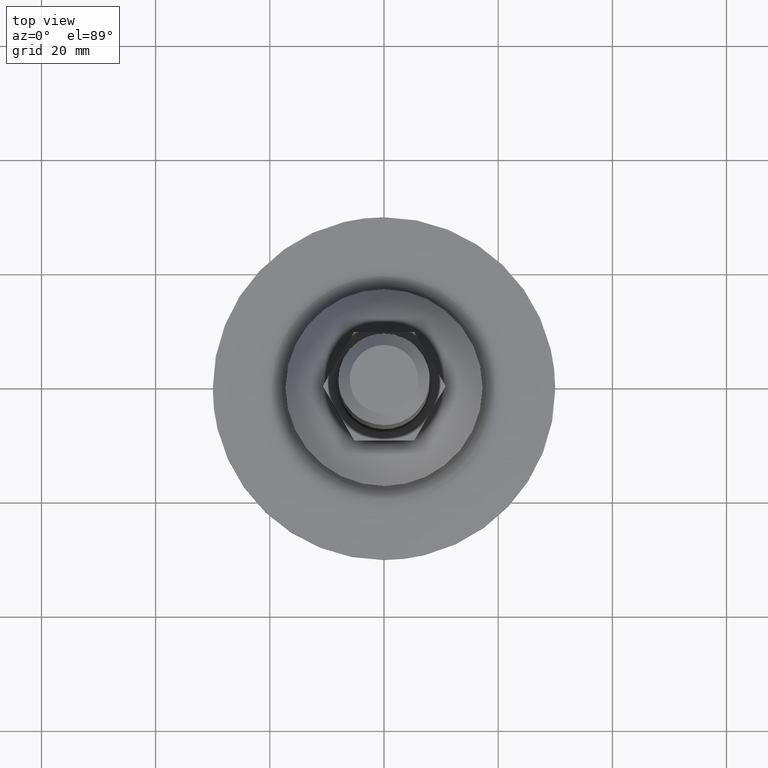
[diagram: clean part render]
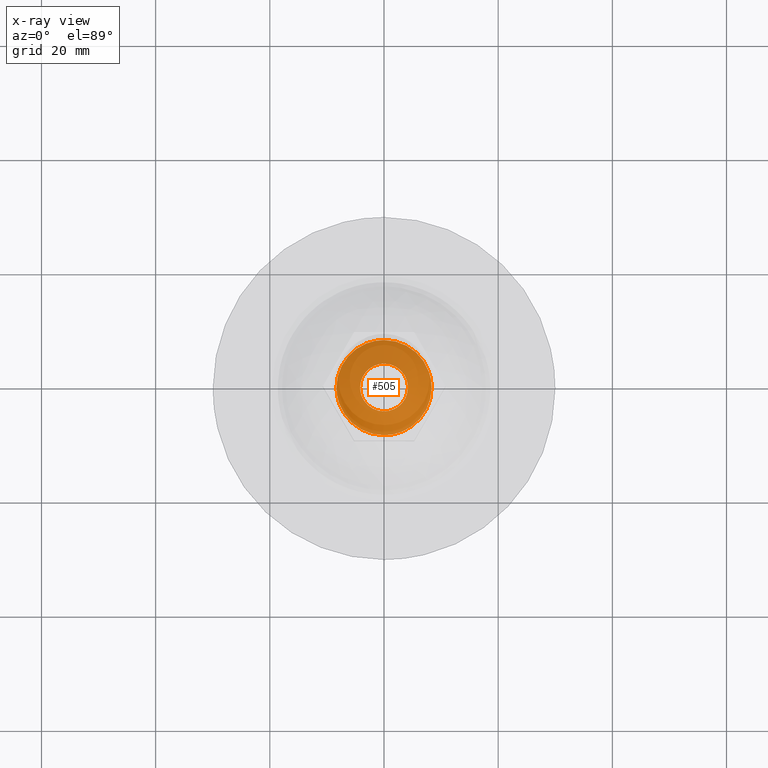
[diagram: x-ray — body ghosted, one internal face saturated and labeled with its STEP entity id]
A machine part, top view, then the same camera in x-ray: the body is ghosted and one INTERNAL B-rep face — a face not visible from any outside direction — is saturated and labeled: STEP entity #505.
In plain terms, the highlighted face is a freeform B-spline surface patch.
Its self-contained STEP definition (entity closure, byte-faithful):
#207=CARTESIAN_POINT('',(-2.829157465810384,-3.087483593302480,12.079303896617679));
#208=VERTEX_POINT('',#207);
#214=CARTESIAN_POINT('',(-0.000001171323715,-4.187682455436696,12.079303834975301));
#215=VERTEX_POINT('',#214);
#216=CARTESIAN_POINT('',(-0.000001171323715,-4.187682455436696,12.079303834975301));
#217=CARTESIAN_POINT('',(-0.355938669721313,-4.187785050847114,12.079303842730569));
#218=CARTESIAN_POINT('',(-1.035390604080122,-4.100535436131165,12.079303857534590));
#219=CARTESIAN_POINT('',(-2.006907598359123,-3.722719710069029,12.079303878702410));
#220=CARTESIAN_POINT('',(-2.566803638266051,-3.328029927556248,12.079303890901381));
#221=CARTESIAN_POINT('',(-2.829157465810384,-3.087483593302480,12.079303896617679));
#222=B_SPLINE_CURVE_WITH_KNOTS('',3,(#216,#217,#218,#219,#220,#221),.UNSPECIFIED.,.F.,.U.,(4,1,1,4),(0.000000025058390,1.067789557634169,2.038502786740352,3.106292319310368),.UNSPECIFIED.);
#223=EDGE_CURVE('',#215,#208,#222,.T.);
#225=CARTESIAN_POINT('',(4.187682455436860,0.0,12.079303834975301));
#226=VERTEX_POINT('',#225);
#227=CARTESIAN_POINT('',(4.187682455436860,0.0,12.079303834975301));
#228=CARTESIAN_POINT('',(4.187926356135033,-0.445421593935186,12.079303834975290));
#229=CARTESIAN_POINT('',(4.077294893682007,-1.130452310534036,12.079303834975320));
#230=CARTESIAN_POINT('',(3.691085759383544,-2.031208356598201,12.079303834975260));
#231=CARTESIAN_POINT('',(3.169747299939522,-2.801463484931488,12.079303834975400));
#232=CARTESIAN_POINT('',(2.434979781868190,-3.459194371581321,12.079303834975081));
#233=CARTESIAN_POINT('',(1.581508743181332,-3.908581418361449,12.079303834975700));
#234=CARTESIAN_POINT('',(0.787973922417335,-4.138657603461962,12.079303834974510));
#235=CARTESIAN_POINT('',(0.256946259863430,-4.187708565903742,12.079303834975990));
#236=CARTESIAN_POINT('',(-0.000001171323715,-4.187682455436696,12.079303834975301));
#237=B_SPLINE_CURVE_WITH_KNOTS('',3,(#227,#228,#229,#230,#231,#232,#233,#234,#235,#236),.UNSPECIFIED.,.F.,.U.,(4,1,1,1,1,1,1,4),(0.000000113159114,1.336160368628973,2.055642042323626,2.929313071796948,4.111266811245580,4.984920635775011,5.807195699894001,6.578038153106869),.UNSPECIFIED.);
#238=EDGE_CURVE('',#226,#215,#237,.T.);
#240=CARTESIAN_POINT('',(2.829157465810387,3.087483593302482,12.079303896617679));
#241=VERTEX_POINT('',#240);
#242=CARTESIAN_POINT('',(2.829157465810387,3.087483593302482,12.079303896617679));
#243=CARTESIAN_POINT('',(3.069158354169907,2.867633022249381,12.079303892228340));
#244=CARTESIAN_POINT('',(3.509423915530836,2.357848102251571,12.079303882050310));
#245=CARTESIAN_POINT('',(4.040519296463439,1.319778375539781,12.079303861325020));
#246=CARTESIAN_POINT('',(4.188043548300948,0.488260693591829,12.079303844723571));
#247=CARTESIAN_POINT('',(4.187682455436860,0.0,12.079303834975301));
#248=B_SPLINE_CURVE_WITH_KNOTS('',3,(#242,#243,#244,#245,#246,#247),.UNSPECIFIED.,.F.,.U.,(4,1,1,4),(0.000000033857638,0.976429604705770,2.007090496872965,3.471744624183001),.UNSPECIFIED.);
#249=EDGE_CURVE('',#241,#226,#248,.T.);
#283=CARTESIAN_POINT('',(0.000001171323728,4.187682455436696,12.079303834975301));
#284=VERTEX_POINT('',#283);
#285=CARTESIAN_POINT('',(0.000001171323728,4.187682455436696,12.079303834975301));
#286=CARTESIAN_POINT('',(0.291218207976123,4.187726371043832,12.079303841320421));
#287=CARTESIAN_POINT('',(0.792739080013718,4.135147278449135,12.079303852247660));
#288=CARTESIAN_POINT('',(1.509179713435946,3.926058231251587,12.079303867857710));
#289=CARTESIAN_POINT('',(2.183062987369127,3.603672460462094,12.079303882540350));
#290=CARTESIAN_POINT('',(2.614479299961627,3.284260608519914,12.079303891940270));
#291=CARTESIAN_POINT('',(2.829157465810387,3.087483593302482,12.079303896617679));
#292=B_SPLINE_CURVE_WITH_KNOTS('',3,(#285,#286,#287,#288,#289,#290,#291),.UNSPECIFIED.,.F.,.U.,(4,1,1,1,4),(0.000000025058357,0.873646542348228,1.504627054662304,2.232645801996367,3.106292319310356),.UNSPECIFIED.);
#293=EDGE_CURVE('',#284,#241,#292,.T.);
#295=CARTESIAN_POINT('',(-4.187682455436860,0.0,12.079303834975301));
#296=VERTEX_POINT('',#295);
#297=CARTESIAN_POINT('',(-4.187682455436860,0.0,12.079303834975301));
#298=CARTESIAN_POINT('',(-4.187747296373112,0.342597372968694,12.079303834975271));
#299=CARTESIAN_POINT('',(-4.096862760509402,1.079207403170548,12.079303834975370));
#300=CARTESIAN_POINT('',(-3.744689466320099,1.944531919681252,12.079303834975249));
#301=CARTESIAN_POINT('',(-3.292115375458151,2.612669418758407,12.079303834975370));
#302=CARTESIAN_POINT('',(-2.862253782516393,3.081166344053201,12.079303834975249));
#303=CARTESIAN_POINT('',(-2.282528905321227,3.539369685182320,12.079303834975359));
#304=CARTESIAN_POINT('',(-1.581519442189608,3.908593492929601,12.079303834975150));
#305=CARTESIAN_POINT('',(-0.787973620727129,4.138657809268110,12.079303834975461));
#306=CARTESIAN_POINT('',(-0.256946397785738,4.187708424169805,12.079303834975111));
#307=CARTESIAN_POINT('',(0.000001171323728,4.187682455436696,12.079303834975301));
#308=B_SPLINE_CURVE_WITH_KNOTS('',3,(#297,#298,#299,#300,#301,#302,#303,#304,#305,#306,#307),.UNSPECIFIED.,.F.,.U.,(4,1,1,1,1,1,1,1,4),(0.000000113161374,1.027804137526610,2.209820874320172,2.775135344638321,3.443181022376320,4.111266811246359,4.984920635775509,5.807195699894230,6.578038153106859),.UNSPECIFIED.);
#309=EDGE_CURVE('',#296,#284,#308,.T.);
#311=CARTESIAN_POINT('',(-2.829157465810384,-3.087483593302480,12.079303896617679));
#312=CARTESIAN_POINT('',(-3.149308579684594,-2.794455634718292,12.079303890767250));
#313=CARTESIAN_POINT('',(-3.525718418705534,-2.322238467163148,12.079303881339451));
#314=CARTESIAN_POINT('',(-3.895456986479314,-1.575573033403463,12.079303866431950));
#315=CARTESIAN_POINT('',(-4.121990203954788,-0.885993087885003,12.079303852664580));
#316=CARTESIAN_POINT('',(-4.187754836281791,-0.325479431261713,12.079303841473370));
#317=CARTESIAN_POINT('',(-4.187682455436860,0.0,12.079303834975301));
#318=B_SPLINE_CURVE_WITH_KNOTS('',3,(#311,#312,#313,#314,#315,#316,#317),.UNSPECIFIED.,.F.,.U.,(4,1,1,1,4),(0.000000033857609,1.301912283812762,1.790100518036572,2.495315053352345,3.471744624183001),.UNSPECIFIED.);
#319=EDGE_CURVE('',#208,#296,#318,.T.);
#346=CARTESIAN_POINT('',(5.632622543304498,6.146928864822622,10.429796869148200));
#347=VERTEX_POINT('',#346);
#353=CARTESIAN_POINT('',(8.337335749202609,0.0,10.429796803877400));
#354=VERTEX_POINT('',#353);
#355=CARTESIAN_POINT('',(5.632622543304498,6.146928864822622,10.429796869148200));
#356=CARTESIAN_POINT('',(6.110449043648147,5.709229953712185,10.429796864500499));
#357=CARTESIAN_POINT('',(6.987023067195541,4.694294227734643,10.429796853723481));
#358=CARTESIAN_POINT('',(7.829454450998830,3.047343840354920,10.429796836235489));
#359=CARTESIAN_POINT('',(8.255283720070384,1.439971863220004,10.429796819167620));
#360=CARTESIAN_POINT('',(8.337367448131179,0.467994779205448,10.429796808846820));
#361=CARTESIAN_POINT('',(8.337335749202609,0.0,10.429796803877400));
#362=B_SPLINE_CURVE_WITH_KNOTS('',3,(#355,#356,#357,#358,#359,#360,#361),.UNSPECIFIED.,.F.,.U.,(4,1,1,1,4),(0.000000011394376,1.943990805700079,3.995965829909177,5.507971629682825,6.911961500046654),.UNSPECIFIED.);
#363=EDGE_CURVE('',#347,#354,#362,.T.);
#365=CARTESIAN_POINT('',(-0.000000817455480,-8.337335749202570,10.429796803877400));
#366=VERTEX_POINT('',#365);
#367=CARTESIAN_POINT('',(8.337335749202609,0.0,10.429796803877400));
#368=CARTESIAN_POINT('',(8.337666390131776,-0.818561257207364,10.429796803877400));
#369=CARTESIAN_POINT('',(8.149972966849427,-2.080213117715252,10.429796803877400));
#370=CARTESIAN_POINT('',(7.499377322255582,-3.736141371337433,10.429796803877389));
#371=CARTESIAN_POINT('',(6.734544507402276,-4.994676473311404,10.429796803877471));
#372=CARTESIAN_POINT('',(5.638037142862222,-6.219562299170750,10.429796803877320));
#373=CARTESIAN_POINT('',(4.287597051328578,-7.221186855031053,10.429796803877430));
#374=CARTESIAN_POINT('',(2.854320603219565,-7.877559416138312,10.429796803877389));
#375=CARTESIAN_POINT('',(1.432376908225184,-8.252305397743346,10.429796803877400));
#376=CARTESIAN_POINT('',(0.511569576965060,-8.337391383587388,10.429796803877400));
#377=CARTESIAN_POINT('',(-0.000000817455480,-8.337335749202570,10.429796803877400));
#378=B_SPLINE_CURVE_WITH_KNOTS('',3,(#367,#368,#369,#370,#371,#372,#373,#374,#375,#376,#377),.UNSPECIFIED.,.F.,.U.,(4,1,1,1,1,1,1,1,4),(0.000000051279477,2.455562137467169,3.785665607020995,5.320410146526463,6.855084030075464,8.696773362131495,10.333835875339039,11.561628583017180,13.096339004288460),.UNSPECIFIED.);
#379=EDGE_CURVE('',#354,#366,#378,.T.);
#381=CARTESIAN_POINT('',(-5.632622543304496,-6.146928864822620,10.429796869148200));
#382=VERTEX_POINT('',#381);
#383=CARTESIAN_POINT('',(-0.000000817455480,-8.337335749202570,10.429796803877400));
#384=CARTESIAN_POINT('',(-0.579788599650665,-8.337421199777744,10.429796810595990));
#385=CARTESIAN_POINT('',(-1.707110331290536,-8.219276866963497,10.429796823659361));
#386=CARTESIAN_POINT('',(-3.033734268230735,-7.798505782766229,10.429796839032360));
#387=CARTESIAN_POINT('',(-4.368047800667752,-7.150648563431991,10.429796854494249));
#388=CARTESIAN_POINT('',(-5.134018883190230,-6.604049253914706,10.429796863370401));
#389=CARTESIAN_POINT('',(-5.632622543304496,-6.146928864822620,10.429796869148200));
#390=B_SPLINE_CURVE_WITH_KNOTS('',3,(#383,#384,#385,#386,#387,#388,#389),.UNSPECIFIED.,.F.,.U.,(4,1,1,1,4),(0.000000015023466,1.739356628476299,3.382066573182151,4.155123826300827,6.184377165200088),.UNSPECIFIED.);
#391=EDGE_CURVE('',#366,#382,#390,.T.);
#421=CARTESIAN_POINT('',(-8.337335749202609,0.0,10.429796803877400));
#422=VERTEX_POINT('',#421);
#423=CARTESIAN_POINT('',(-5.632622543304496,-6.146928864822620,10.429796869148200));
#424=CARTESIAN_POINT('',(-6.110488892534571,-5.709252085520387,10.429796864500769));
#425=CARTESIAN_POINT('',(-6.797357389785016,-4.913661525863308,10.429796856052810));
#426=CARTESIAN_POINT('',(-7.574697205928834,-3.570455601593524,10.429796841790070));
#427=CARTESIAN_POINT('',(-8.164748253265753,-2.015856760578457,10.429796825282621));
#428=CARTESIAN_POINT('',(-8.337583966828120,-0.756018689712842,10.429796811905220));
#429=CARTESIAN_POINT('',(-8.337335749202609,0.0,10.429796803877400));
#430=B_SPLINE_CURVE_WITH_KNOTS('',3,(#423,#424,#425,#426,#427,#428,#429),.UNSPECIFIED.,.F.,.U.,(4,1,1,1,4),(0.000000011394143,1.943990805699940,3.131991541903899,4.643968544172838,6.911961500046659),.UNSPECIFIED.);
#431=EDGE_CURVE('',#382,#422,#430,.T.);
#433=CARTESIAN_POINT('',(0.000000817455485,8.337335749202570,10.429796803877400));
#434=VERTEX_POINT('',#433);
#435=CARTESIAN_POINT('',(-8.337335749202609,0.0,10.429796803877400));
#436=CARTESIAN_POINT('',(-8.337613808745038,0.750334151804296,10.429796803877400));
#437=CARTESIAN_POINT('',(-8.165767365291002,2.012064848535871,10.429796803877370));
#438=CARTESIAN_POINT('',(-7.607755770265971,3.485415751901145,10.429796803877441));
#439=CARTESIAN_POINT('',(-6.958254119918570,4.648495993806265,10.429796803877290));
#440=CARTESIAN_POINT('',(-6.122095006968245,5.733683669777400,10.429796803877609));
#441=CARTESIAN_POINT('',(-5.018157897901282,6.709794398968598,10.429796803877220));
#442=CARTESIAN_POINT('',(-3.678915534023120,7.535046578045479,10.429796803877521));
#443=CARTESIAN_POINT('',(-2.046201971103671,8.164889888788871,10.429796803877450));
#444=CARTESIAN_POINT('',(-0.716216663549726,8.337538940437041,10.429796803877350));
#445=CARTESIAN_POINT('',(0.000000817455485,8.337335749202570,10.429796803877400));
#446=B_SPLINE_CURVE_WITH_KNOTS('',3,(#435,#436,#437,#438,#439,#440,#441,#442,#443,#444,#445),.UNSPECIFIED.,.F.,.U.,(4,1,1,1,1,1,1,1,4),(0.000000051280010,2.250924689098229,3.785665607021267,4.706501713596023,6.241254326070332,7.878242215920638,9.106046293326322,10.947735166949860,13.096339004288460),.UNSPECIFIED.);
#447=EDGE_CURVE('',#422,#434,#446,.T.);
#449=CARTESIAN_POINT('',(0.000000817455485,8.337335749202570,10.429796803877400));
#450=CARTESIAN_POINT('',(0.579791917184575,8.337435044643707,10.429796810596009));
#451=CARTESIAN_POINT('',(1.513847452368412,8.239478642126320,10.429796821419860));
#452=CARTESIAN_POINT('',(2.726185832875977,7.900832837197366,10.429796835468441));
#453=CARTESIAN_POINT('',(4.096643187224350,7.331081568740032,10.429796851349270));
#454=CARTESIAN_POINT('',(5.039143335101104,6.691268153809359,10.429796862270990));
#455=CARTESIAN_POINT('',(5.632622543304498,6.146928864822622,10.429796869148200));
#456=B_SPLINE_CURVE_WITH_KNOTS('',3,(#449,#450,#451,#452,#453,#454,#455),.UNSPECIFIED.,.F.,.U.,(4,1,1,1,4),(0.000000015023853,1.739356628476553,2.802310100241611,3.768601734041306,6.184377165200087),.UNSPECIFIED.);
#457=EDGE_CURVE('',#434,#347,#456,.T.);
#465=CARTESIAN_POINT('',(-8.412443232861392,-8.412443232861321,7.782980001114144));
#466=CARTESIAN_POINT('',(-4.524883208664011,-9.049766417327893,10.009022289313755));
#467=CARTESIAN_POINT('',(4.524883372602560,-9.049766417327895,10.009022289313783));
#468=CARTESIAN_POINT('',(8.412443494719302,-8.412443189932557,7.782979851172602));
#469=CARTESIAN_POINT('',(-9.049766417327977,-4.524883208663928,10.009022289313728));
#470=CARTESIAN_POINT('',(-4.895785903147880,-4.895785903147781,12.599999999999991));
#471=CARTESIAN_POINT('',(4.895786080524390,-4.895785903147781,12.600000000000019));
#472=CARTESIAN_POINT('',(9.049766695525470,-4.524883183824083,10.009022115792574));
#473=CARTESIAN_POINT('',(-9.049766417327977,4.524883372602642,10.009022289313711));
#474=CARTESIAN_POINT('',(-4.895785903147880,4.895786080524488,12.599999999999961));
#475=CARTESIAN_POINT('',(4.895786080524390,4.895786080524488,12.600000000000000));
#476=CARTESIAN_POINT('',(9.049766695525470,4.524883347762798,10.009022115792556));
#477=CARTESIAN_POINT('',(-8.412443189932624,8.412443494719373,7.782979851172502));
#478=CARTESIAN_POINT('',(-4.524883183824167,9.049766695525555,10.009022115792490));
#479=CARTESIAN_POINT('',(4.524883347762715,9.049766695525555,10.009022115792527));
#480=CARTESIAN_POINT('',(8.412443451790535,8.412443451790605,7.782979701230961));
#488=(BOUNDED_SURFACE()B_SPLINE_SURFACE(2,2,((#465,#469,#473,#477),(#466,#470,#474,#478),(#467,#471,#475,#479),(#468,#472,#476,#480)),.UNSPECIFIED.,.F.,.F.,.U.)B_SPLINE_SURFACE_WITH_KNOTS((3,1,3),(3,1,3),(0.0,9.406066241554639,18.812132823895460),(0.0,9.406066241554639,18.812132823895460),.UNSPECIFIED.)GEOMETRIC_REPRESENTATION_ITEM()RATIONAL_B_SPLINE_SURFACE(((1.163939123897685,1.081969561948843,1.081969561948843,1.163939129837276),(1.081969561948843,1.0,1.0,1.081969567888434),(1.081969561948843,1.0,1.0,1.081969567888434),(1.163939129837276,1.081969567888434,1.081969567888434,1.163939135776867)))REPRESENTATION_ITEM('')SURFACE());
#489=ORIENTED_EDGE('',*,*,#431,.F.);
#490=ORIENTED_EDGE('',*,*,#391,.F.);
#491=ORIENTED_EDGE('',*,*,#379,.F.);
#492=ORIENTED_EDGE('',*,*,#363,.F.);
#493=ORIENTED_EDGE('',*,*,#457,.F.);
#494=ORIENTED_EDGE('',*,*,#447,.F.);
#495=EDGE_LOOP('',(#489,#490,#491,#492,#493,#494));
#496=FACE_OUTER_BOUND('',#495,.T.);
#497=ORIENTED_EDGE('',*,*,#309,.T.);
#498=ORIENTED_EDGE('',*,*,#293,.T.);
#499=ORIENTED_EDGE('',*,*,#249,.T.);
#500=ORIENTED_EDGE('',*,*,#238,.T.);
#501=ORIENTED_EDGE('',*,*,#223,.T.);
#502=ORIENTED_EDGE('',*,*,#319,.T.);
#503=EDGE_LOOP('',(#497,#498,#499,#500,#501,#502));
#504=FACE_BOUND('',#503,.T.);
#505=ADVANCED_FACE('',(#496,#504),#488,.T.);